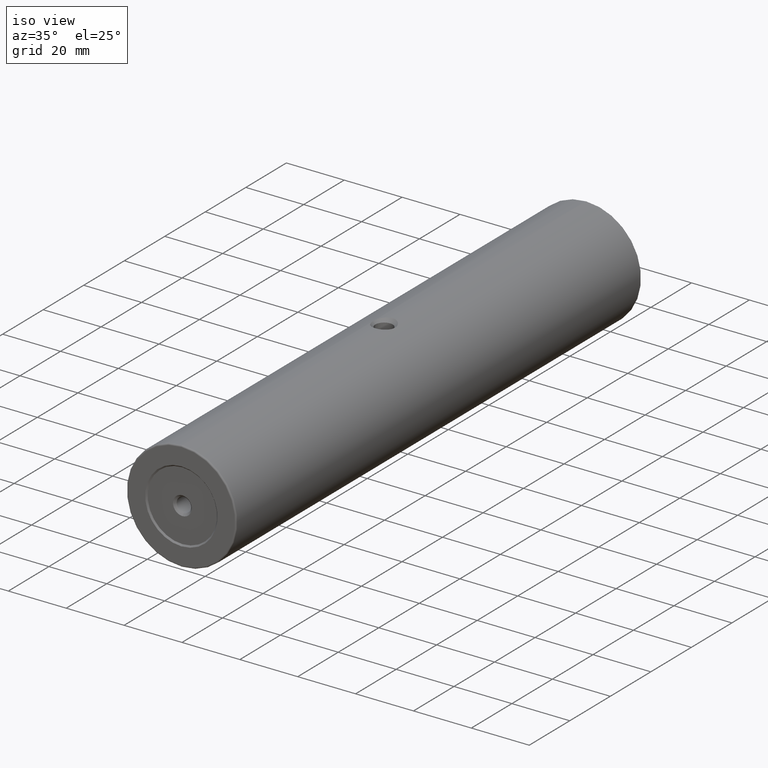
[diagram: clean part render]
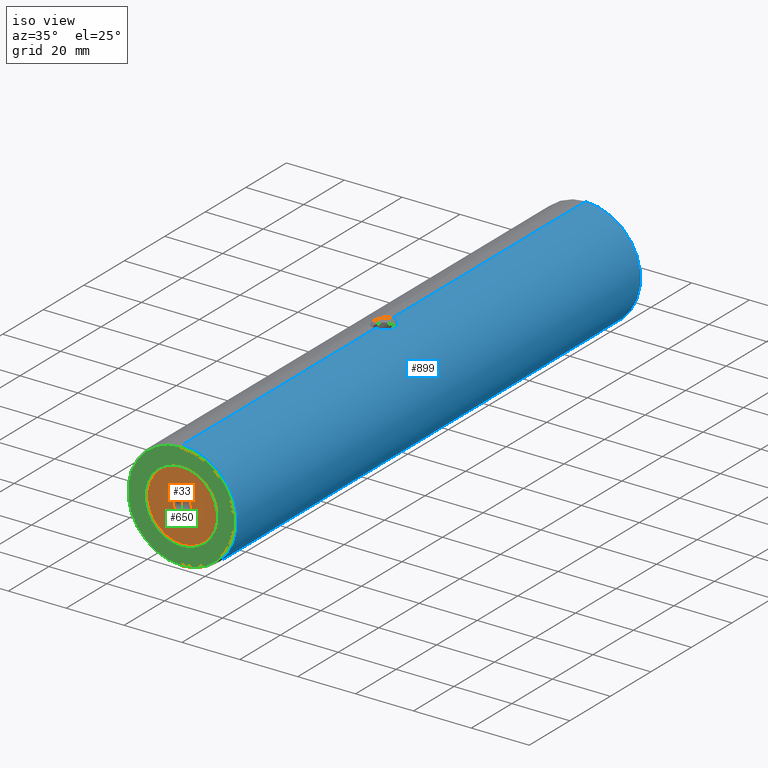
[diagram: same view with three faces highlighted in distinct colors, each labeled with its STEP entity id]
A machine part, iso view with three faces highlighted in distinct colors.
Their STEP definitions:

[orange] entity #33 — the highlighted planar face has unit normal (0, -1, 0).
#3 = CARTESIAN_POINT ( 'NONE',  ( -85.22679983354142053, -103.7613399916742907, 396.7500000000000568 ) ) ;
#4 = DIRECTION ( 'NONE',  ( 0.0000000000000000000, 0.0000000000000000000, -1.000000000000000000 ) ) ;
#9 = EDGE_LOOP ( 'NONE', ( #154, #583 ) ) ;
#29 = PLANE ( 'NONE',  #371 ) ;
#33 = ADVANCED_FACE ( 'NONE', ( #271, #811 ), #29, .T. ) ;
#45 = ORIENTED_EDGE ( 'NONE', *, *, #922, .T. ) ;
#79 = CIRCLE ( 'NONE', #820, 12.00000000000001066 ) ;
#138 = ORIENTED_EDGE ( 'NONE', *, *, #708, .T. ) ;
#154 = ORIENTED_EDGE ( 'NONE', *, *, #734, .F. ) ;
#233 = DIRECTION ( 'NONE',  ( -0.0000000000000000000, 1.000000000000000000, -0.0000000000000000000 ) ) ;
#256 = CARTESIAN_POINT ( 'NONE',  ( -85.22679983354142053, -103.7613399916742907, 400.0000000000000000 ) ) ;
#263 = DIRECTION ( 'NONE',  ( 0.0000000000000000000, 0.0000000000000000000, 1.000000000000000000 ) ) ;
#271 = FACE_BOUND ( 'NONE', #838, .T. ) ;
#299 = AXIS2_PLACEMENT_3D ( 'NONE', #538, #934, #938 ) ;
#354 = EDGE_CURVE ( 'NONE', #849, #872, #79, .T. ) ;
#371 = AXIS2_PLACEMENT_3D ( 'NONE', #821, #502, #263 ) ;
#388 = CARTESIAN_POINT ( 'NONE',  ( -85.22679983354142053, -103.7613399916742907, 403.2500000000000000 ) ) ;
#422 = CIRCLE ( 'NONE', #785, 3.249999999999975131 ) ;
#454 = VERTEX_POINT ( 'NONE', #3 ) ;
#477 = CIRCLE ( 'NONE', #299, 12.00000000000001066 ) ;
#483 = CIRCLE ( 'NONE', #876, 3.249999999999975131 ) ;
#502 = DIRECTION ( 'NONE',  ( 0.0000000000000000000, -1.000000000000000000, 0.0000000000000000000 ) ) ;
#532 = DIRECTION ( 'NONE',  ( -0.0000000000000000000, 1.000000000000000000, -0.0000000000000000000 ) ) ;
#538 = CARTESIAN_POINT ( 'NONE',  ( -85.22679983354142053, -103.7613399916742907, 400.0000000000000000 ) ) ;
#555 = DIRECTION ( 'NONE',  ( 0.0000000000000000000, 0.0000000000000000000, -1.000000000000000000 ) ) ;
#566 = CARTESIAN_POINT ( 'NONE',  ( -85.22679983354142053, -103.7613399916742907, 412.0000000000000568 ) ) ;
#583 = ORIENTED_EDGE ( 'NONE', *, *, #354, .F. ) ;
#587 = DIRECTION ( 'NONE',  ( -0.0000000000000000000, 1.000000000000000000, -0.0000000000000000000 ) ) ;
#617 = CARTESIAN_POINT ( 'NONE',  ( -85.22679983354142053, -103.7613399916742907, 400.0000000000000000 ) ) ;
#686 = CARTESIAN_POINT ( 'NONE',  ( -85.22679983354142053, -103.7613399916742907, 400.0000000000000000 ) ) ;
#704 = VERTEX_POINT ( 'NONE', #388 ) ;
#708 = EDGE_CURVE ( 'NONE', #704, #454, #422, .T. ) ;
#734 = EDGE_CURVE ( 'NONE', #872, #849, #477, .T. ) ;
#785 = AXIS2_PLACEMENT_3D ( 'NONE', #617, #233, #555 ) ;
#808 = CARTESIAN_POINT ( 'NONE',  ( -85.22679983354142053, -103.7613399916742907, 388.0000000000000000 ) ) ;
#811 = FACE_OUTER_BOUND ( 'NONE', #9, .T. ) ;
#820 = AXIS2_PLACEMENT_3D ( 'NONE', #686, #532, #996 ) ;
#821 = CARTESIAN_POINT ( 'NONE',  ( -85.22679983354142053, -103.7613399916742907, 400.0000000000000000 ) ) ;
#838 = EDGE_LOOP ( 'NONE', ( #45, #138 ) ) ;
#849 = VERTEX_POINT ( 'NONE', #808 ) ;
#872 = VERTEX_POINT ( 'NONE', #566 ) ;
#876 = AXIS2_PLACEMENT_3D ( 'NONE', #256, #587, #4 ) ;
#922 = EDGE_CURVE ( 'NONE', #454, #704, #483, .T. ) ;
#934 = DIRECTION ( 'NONE',  ( -0.0000000000000000000, 1.000000000000000000, -0.0000000000000000000 ) ) ;
#938 = DIRECTION ( 'NONE',  ( 0.0000000000000000000, 0.0000000000000000000, -1.000000000000000000 ) ) ;
#996 = DIRECTION ( 'NONE',  ( 0.0000000000000000000, 0.0000000000000000000, -1.000000000000000000 ) ) ;

[blue] entity #899 — the highlighted cylindrical surface (partial cylindrical patch) has radius 19 mm, axis along (-0, -1, -0).
#2 = CARTESIAN_POINT ( 'NONE',  ( -82.83102515499484753, -0.9863390833895698817, 418.8494842750069438 ) ) ;
#20 = VERTEX_POINT ( 'NONE', #590 ) ;
#37 = VERTEX_POINT ( 'NONE', #724 ) ;
#44 = CARTESIAN_POINT ( 'NONE',  ( -81.59279953389886941, -2.964568543362572584, 381.3505402671659681 ) ) ;
#47 = CARTESIAN_POINT ( 'NONE',  ( -82.29671814351611658, -6.957786961682561611, 381.2264976013096884 ) ) ;
#57 = CARTESIAN_POINT ( 'NONE',  ( -84.18986350246656514, -8.312315706571794749, 418.9733988301109093 ) ) ;
#74 = CARTESIAN_POINT ( 'NONE',  ( -82.14497683168238495, -1.778754477084894647, 418.7488661386886406 ) ) ;
#75 = DIRECTION ( 'NONE',  ( -0.0000000000000000000, -1.000000000000000000, -0.0000000000000000000 ) ) ;
#77 = CIRCLE ( 'NONE', #661, 19.00000000000001776 ) ;
#81 = CARTESIAN_POINT ( 'NONE',  ( -81.43639937781144056, -3.732814026306843225, 418.6181352063767918 ) ) ;
#86 = DIRECTION ( 'NONE',  ( 0.0000000000000000000, 1.000000000000000000, 0.0000000000000000000 ) ) ;
#90 = ORIENTED_EDGE ( 'NONE', *, *, #220, .T. ) ;
#91 = ORIENTED_EDGE ( 'NONE', *, *, #767, .T. ) ;
#100 = VECTOR ( 'NONE', #75, 1000.000000000000000 ) ;
#101 = CARTESIAN_POINT ( 'NONE',  ( -85.22679983354142053, 95.73866000832572354, 400.0000000000000000 ) ) ;
#115 = EDGE_CURVE ( 'NONE', #789, #926, #180, .T. ) ;
#121 = CARTESIAN_POINT ( 'NONE',  ( -82.29571650229409840, -1.565921010254241796, 381.2266365370629160 ) ) ;
#124 = CARTESIAN_POINT ( 'NONE',  ( -82.14309753980985818, -6.741247472261910012, 381.2514396459365571 ) ) ;
#125 = ORIENTED_EDGE ( 'NONE', *, *, #433, .F. ) ;
#132 = CARTESIAN_POINT ( 'NONE',  ( -81.41341497436532393, -4.524701080299158740, 381.3866151408239489 ) ) ;
#136 = CARTESIAN_POINT ( 'NONE',  ( -81.88335953815429491, -2.229144387579305775, 381.2960158925316705 ) ) ;
#139 = CARTESIAN_POINT ( 'NONE',  ( -81.43639937781146898, -3.732814026306841892, 381.3818647936232082 ) ) ;
#142 = CARTESIAN_POINT ( 'NONE',  ( -85.22679983354142053, -8.461339991674268646, 419.0000000000000568 ) ) ;
#147 = CARTESIAN_POINT ( 'NONE',  ( -85.22679983354142053, 95.23866000832572354, 381.0000000000000000 ) ) ;
#151 = DIRECTION ( 'NONE',  ( -0.0000000000000000000, -1.000000000000000000, -0.0000000000000000000 ) ) ;
#156 = CARTESIAN_POINT ( 'NONE',  ( -84.69707466841043697, -0.09239770115273915341, 418.9943257409157127 ) ) ;
#157 = CARTESIAN_POINT ( 'NONE',  ( -81.41341497436532393, -4.261339991674279126, 418.6133848591761648 ) ) ;
#168 = B_SPLINE_CURVE_WITH_KNOTS ( 'NONE', 3,
 ( #523, #826, #836, #287, #348, #515, #674, #979, #681, #47, #124, #987, #597, #750, #903, #603, #132, #444 ),
 .UNSPECIFIED., .F., .F.,
 ( 4, 2, 2, 2, 2, 2, 2, 2, 4 ),
 ( 0.003733624680294762854, 0.004520577988407363350, 0.005307531296519963845, 0.006094484604632565208, 0.006881437912745166571, 0.007668391220857769669, 0.008455344528970371032, 0.009242297837082972395, 0.01002925114519557549 ),
 .UNSPECIFIED. ) ;
#180 = LINE ( 'NONE', #570, #637 ) ;
#188 = VERTEX_POINT ( 'NONE', #915 ) ;
#201 = CARTESIAN_POINT ( 'NONE',  ( -83.24199987212081453, -0.6676668308104372063, 381.1028212990075872 ) ) ;
#208 = CARTESIAN_POINT ( 'NONE',  ( -83.46626106639050136, -7.995107640163255702, 418.9197388689088370 ) ) ;
#220 = EDGE_CURVE ( 'NONE', #37, #324, #168, .T. ) ;
#222 = ORIENTED_EDGE ( 'NONE', *, *, #282, .T. ) ;
#223 = CARTESIAN_POINT ( 'NONE',  ( -81.88335953815429491, -2.229144387579318209, 418.7039841074685000 ) ) ;
#228 = CARTESIAN_POINT ( 'NONE',  ( -81.41341497436532393, -3.997586484548957486, 418.6133848591761648 ) ) ;
#237 = CARTESIAN_POINT ( 'NONE',  ( -82.64087668775827922, -1.167056617506570415, 418.8240119711596208 ) ) ;
#238 = CARTESIAN_POINT ( 'NONE',  ( -81.77082803723338600, -6.051458313143361245, 418.6832669197586370 ) ) ;
#241 = CARTESIAN_POINT ( 'NONE',  ( -81.52508446630257311, -5.300719478809653218, 418.6359698950037682 ) ) ;
#242 = CIRCLE ( 'NONE', #694, 19.00000000000001776 ) ;
#248 = CARTESIAN_POINT ( 'NONE',  ( -85.22679983354142053, -0.06133999167429880772, 419.0000000000000568 ) ) ;
#254 = FACE_OUTER_BOUND ( 'NONE', #772, .T. ) ;
#260 = VECTOR ( 'NONE', #830, 1000.000000000000000 ) ;
#274 = VERTEX_POINT ( 'NONE', #684 ) ;
#282 = EDGE_CURVE ( 'NONE', #20, #602, #527, .T. ) ;
#287 = CARTESIAN_POINT ( 'NONE',  ( -84.18986350246656514, -8.312315706571794749, 381.0266011698889201 ) ) ;
#291 = CARTESIAN_POINT ( 'NONE',  ( -85.22679983354142053, -8.461339991674268646, 419.0000000000000568 ) ) ;
#300 = CARTESIAN_POINT ( 'NONE',  ( -84.69707466841040855, -0.09239770115273913953, 381.0056742590844578 ) ) ;
#304 = CARTESIAN_POINT ( 'NONE',  ( -85.22679983354142053, 95.23866000832572354, 400.0000000000000000 ) ) ;
#305 = CARTESIAN_POINT ( 'NONE',  ( -82.83102515499486174, -0.9863390833895689935, 381.1505157249931699 ) ) ;
#315 = CARTESIAN_POINT ( 'NONE',  ( -83.46511704992533964, -0.5280370949836369343, 418.9196591600729107 ) ) ;
#319 = VERTEX_POINT ( 'NONE', #848 ) ;
#324 = VERTEX_POINT ( 'NONE', #534 ) ;
#330 = ORIENTED_EDGE ( 'NONE', *, *, #845, .T. ) ;
#336 = EDGE_CURVE ( 'NONE', #324, #926, #457, .T. ) ;
#348 = CARTESIAN_POINT ( 'NONE',  ( -83.93808702169893365, -8.222923423920713404, 381.0422776972831116 ) ) ;
#352 = CARTESIAN_POINT ( 'NONE',  ( -84.96393248785444996, -0.06133999167429707300, 381.0000000000000000 ) ) ;
#360 = CARTESIAN_POINT ( 'NONE',  ( -84.18753268678749180, -0.2111030241652349648, 381.0267308325566091 ) ) ;
#364 = CARTESIAN_POINT ( 'NONE',  ( -82.82757549099136440, -7.533607839044134558, 418.8490779973516851 ) ) ;
#369 = CARTESIAN_POINT ( 'NONE',  ( -83.93808702169893365, -8.222923423920713404, 418.9577223027167747 ) ) ;
#390 = CARTESIAN_POINT ( 'NONE',  ( -85.22679983354142053, -0.06133999167429880772, 381.0000000000000000 ) ) ;
#394 = CARTESIAN_POINT ( 'NONE',  ( -85.22679983354142053, 95.73866000832572354, 381.0000000000000000 ) ) ;
#411 = CYLINDRICAL_SURFACE ( 'NONE', #744, 19.00000000000001776 ) ;
#431 = CARTESIAN_POINT ( 'NONE',  ( -82.14497683168241338, -1.778754477084883101, 381.2511338613114162 ) ) ;
#433 = EDGE_CURVE ( 'NONE', #727, #188, #666, .T. ) ;
#441 = CARTESIAN_POINT ( 'NONE',  ( -81.41341497436532393, -4.261339991674277350, 381.3866151408238920 ) ) ;
#444 = CARTESIAN_POINT ( 'NONE',  ( -81.41341497436532393, -4.261339991674277350, 381.3866151408238920 ) ) ;
#457 = B_SPLINE_CURVE_WITH_KNOTS ( 'NONE', 3,
 ( #441, #824, #139, #925, #44, #990, #136, #431, #121, #528, #305, #201, #929, #746, #360, #300, #352, #678 ),
 .UNSPECIFIED., .F., .F.,
 ( 4, 2, 2, 2, 2, 2, 2, 2, 4 ),
 ( 0.01002925114519557549, 0.01081737704504791807, 0.01160550294490026065, 0.01239362884475260496, 0.01318175474460494753, 0.01396988064445729011, 0.01475800654430963268, 0.01554613244416197526, 0.01633425834401431784 ),
 .UNSPECIFIED. ) ;
#460 = ORIENTED_EDGE ( 'NONE', *, *, #469, .F. ) ;
#469 = EDGE_CURVE ( 'NONE', #37, #319, #702, .T. ) ;
#471 = CARTESIAN_POINT ( 'NONE',  ( -81.59279953389886941, -2.964568543362574360, 418.6494597328340888 ) ) ;
#475 = CARTESIAN_POINT ( 'NONE',  ( -83.24199987212080032, -0.6676668308104377614, 418.8971787009924697 ) ) ;
#480 = CARTESIAN_POINT ( 'NONE',  ( -85.22679983354142053, 95.73866000832572354, 419.0000000000000568 ) ) ;
#497 = LINE ( 'NONE', #480, #794 ) ;
#515 = CARTESIAN_POINT ( 'NONE',  ( -83.46626106639050136, -7.995107640163255702, 381.0802611310913903 ) ) ;
#523 = CARTESIAN_POINT ( 'NONE',  ( -85.22679983354142053, -8.461339991674268646, 381.0000000000000000 ) ) ;
#527 = LINE ( 'NONE', #900, #260 ) ;
#528 = CARTESIAN_POINT ( 'NONE',  ( -82.64087668775829343, -1.167056617506569971, 381.1759880288403792 ) ) ;
#534 = CARTESIAN_POINT ( 'NONE',  ( -81.41341497436532393, -4.261339991674277350, 381.3866151408238920 ) ) ;
#556 = CARTESIAN_POINT ( 'NONE',  ( -81.88059113652985843, -6.288202399889226690, 418.7034922552546163 ) ) ;
#561 = CARTESIAN_POINT ( 'NONE',  ( -81.59285872774556481, -5.558021363143371474, 418.6494685149854149 ) ) ;
#570 = CARTESIAN_POINT ( 'NONE',  ( -85.22679983354142053, 95.73866000832572354, 381.0000000000000000 ) ) ;
#590 = CARTESIAN_POINT ( 'NONE',  ( -85.22679983354142053, 95.23866000832572354, 419.0000000000000568 ) ) ;
#597 = CARTESIAN_POINT ( 'NONE',  ( -81.77082803723338600, -6.051458313143355028, 381.3167330802414767 ) ) ;
#602 = VERTEX_POINT ( 'NONE', #248 ) ;
#603 = CARTESIAN_POINT ( 'NONE',  ( -81.43586367851925445, -4.785232307264686291, 381.3819744963091694 ) ) ;
#624 = CARTESIAN_POINT ( 'NONE',  ( -84.96393248785446417, -0.06133999167429705912, 419.0000000000001705 ) ) ;
#627 = ORIENTED_EDGE ( 'NONE', *, *, #939, .T. ) ;
#631 = CARTESIAN_POINT ( 'NONE',  ( -81.77187972696634688, -2.468561370532886379, 418.6834641745472823 ) ) ;
#632 = CARTESIAN_POINT ( 'NONE',  ( -82.14309753980985818, -6.741247472261910012, 418.7485603540634429 ) ) ;
#637 = VECTOR ( 'NONE', #878, 1000.000000000000000 ) ;
#661 = AXIS2_PLACEMENT_3D ( 'NONE', #304, #705, #859 ) ;
#666 = B_SPLINE_CURVE_WITH_KNOTS ( 'NONE', 3,
 ( #291, #1005, #914, #57, #369, #208, #692, #364, #689, #1000, #632, #556, #238, #561, #241, #951, #863, #157 ),
 .UNSPECIFIED., .F., .F.,
 ( 4, 2, 2, 2, 2, 2, 2, 2, 4 ),
 ( 0.003733624680294762854, 0.004520577988407363350, 0.005307531296519963845, 0.006094484604632564341, 0.006881437912745166571, 0.007668391220857767934, 0.008455344528970369297, 0.009242297837082972395, 0.01002925114519557376 ),
 .UNSPECIFIED. ) ;
#674 = CARTESIAN_POINT ( 'NONE',  ( -83.24438980785724596, -7.856924346119599889, 381.1025380199827737 ) ) ;
#678 = CARTESIAN_POINT ( 'NONE',  ( -85.22679983354142053, -0.06133999167429880772, 381.0000000000000000 ) ) ;
#681 = CARTESIAN_POINT ( 'NONE',  ( -82.63814515825626472, -7.352595677616392322, 381.1763808475635642 ) ) ;
#684 = CARTESIAN_POINT ( 'NONE',  ( -85.22679983354142053, -103.7613399916742907, 419.0000000000000568 ) ) ;
#689 = CARTESIAN_POINT ( 'NONE',  ( -82.63814515825626472, -7.352595677616392322, 418.8236191524364926 ) ) ;
#692 = CARTESIAN_POINT ( 'NONE',  ( -83.24438980785724596, -7.856924346119599889, 418.8974619800173400 ) ) ;
#694 = AXIS2_PLACEMENT_3D ( 'NONE', #790, #86, #947 ) ;
#702 = LINE ( 'NONE', #394, #100 ) ;
#705 = DIRECTION ( 'NONE',  ( -0.0000000000000000000, -1.000000000000000000, -0.0000000000000000000 ) ) ;
#713 = ORIENTED_EDGE ( 'NONE', *, *, #723, .F. ) ;
#723 = EDGE_CURVE ( 'NONE', #188, #602, #870, .T. ) ;
#724 = CARTESIAN_POINT ( 'NONE',  ( -85.22679983354142053, -8.461339991674268646, 381.0000000000000000 ) ) ;
#727 = VERTEX_POINT ( 'NONE', #142 ) ;
#744 = AXIS2_PLACEMENT_3D ( 'NONE', #101, #151, #864 ) ;
#746 = CARTESIAN_POINT ( 'NONE',  ( -83.94119362236200743, -0.2983445582111096117, 381.0420400455853382 ) ) ;
#750 = CARTESIAN_POINT ( 'NONE',  ( -81.59285872774556481, -5.558021363143366145, 381.3505314850146988 ) ) ;
#767 = EDGE_CURVE ( 'NONE', #789, #20, #77, .T. ) ;
#772 = EDGE_LOOP ( 'NONE', ( #91, #222, #713, #125, #330, #627, #460, #90, #842, #901 ) ) ;
#776 = CARTESIAN_POINT ( 'NONE',  ( -83.94119362236200743, -0.2983445582111095007, 418.9579599544148323 ) ) ;
#780 = CARTESIAN_POINT ( 'NONE',  ( -81.52612773688036896, -3.217498801581725854, 418.6361777253471814 ) ) ;
#789 = VERTEX_POINT ( 'NONE', #147 ) ;
#790 = CARTESIAN_POINT ( 'NONE',  ( -85.22679983354142053, -103.7613399916742907, 400.0000000000000000 ) ) ;
#791 = DIRECTION ( 'NONE',  ( -0.0000000000000000000, -1.000000000000000000, -0.0000000000000000000 ) ) ;
#794 = VECTOR ( 'NONE', #791, 1000.000000000000000 ) ;
#824 = CARTESIAN_POINT ( 'NONE',  ( -81.41341497436533814, -3.997586484548954822, 381.3866151408237783 ) ) ;
#826 = CARTESIAN_POINT ( 'NONE',  ( -84.96243902164792416, -8.461339991674275751, 381.0000000000000568 ) ) ;
#830 = DIRECTION ( 'NONE',  ( -0.0000000000000000000, -1.000000000000000000, -0.0000000000000000000 ) ) ;
#836 = CARTESIAN_POINT ( 'NONE',  ( -84.69972560880194123, -8.430702186240790041, 381.0055983805024198 ) ) ;
#842 = ORIENTED_EDGE ( 'NONE', *, *, #336, .T. ) ;
#845 = EDGE_CURVE ( 'NONE', #727, #274, #497, .T. ) ;
#848 = CARTESIAN_POINT ( 'NONE',  ( -85.22679983354142053, -103.7613399916742907, 381.0000000000000000 ) ) ;
#856 = CARTESIAN_POINT ( 'NONE',  ( -85.22679983354142053, -0.06133999167429880772, 419.0000000000000568 ) ) ;
#859 = DIRECTION ( 'NONE',  ( 0.0000000000000000000, 0.0000000000000000000, 1.000000000000000000 ) ) ;
#862 = CARTESIAN_POINT ( 'NONE',  ( -84.18753268678747759, -0.2111030241652349926, 418.9732691674435046 ) ) ;
#863 = CARTESIAN_POINT ( 'NONE',  ( -81.41341497436532393, -4.524701080299160516, 418.6133848591761648 ) ) ;
#864 = DIRECTION ( 'NONE',  ( 0.0000000000000000000, 0.0000000000000000000, -1.000000000000000000 ) ) ;
#870 = B_SPLINE_CURVE_WITH_KNOTS ( 'NONE', 3,
 ( #928, #228, #81, #780, #471, #631, #223, #74, #942, #237, #2, #475, #315, #776, #862, #156, #624, #856 ),
 .UNSPECIFIED., .F., .F.,
 ( 4, 2, 2, 2, 2, 2, 2, 2, 4 ),
 ( 0.01002925114519557376, 0.01081737704504791807, 0.01160550294490026065, 0.01239362884475260496, 0.01318175474460494753, 0.01396988064445729011, 0.01475800654430963268, 0.01554613244416197526, 0.01633425834401431784 ),
 .UNSPECIFIED. ) ;
#878 = DIRECTION ( 'NONE',  ( -0.0000000000000000000, -1.000000000000000000, -0.0000000000000000000 ) ) ;
#899 = ADVANCED_FACE ( 'NONE', ( #254 ), #411, .T. ) ;
#900 = CARTESIAN_POINT ( 'NONE',  ( -85.22679983354142053, 95.73866000832572354, 419.0000000000000568 ) ) ;
#901 = ORIENTED_EDGE ( 'NONE', *, *, #115, .F. ) ;
#903 = CARTESIAN_POINT ( 'NONE',  ( -81.52508446630257311, -5.300719478809650553, 381.3640301049963455 ) ) ;
#914 = CARTESIAN_POINT ( 'NONE',  ( -84.69972560880194123, -8.430702186240790041, 418.9944016194976939 ) ) ;
#915 = CARTESIAN_POINT ( 'NONE',  ( -81.41341497436532393, -4.261339991674279126, 418.6133848591761648 ) ) ;
#925 = CARTESIAN_POINT ( 'NONE',  ( -81.52612773688034054, -3.217498801581724077, 381.3638222746528754 ) ) ;
#926 = VERTEX_POINT ( 'NONE', #390 ) ;
#928 = CARTESIAN_POINT ( 'NONE',  ( -81.41341497436532393, -4.261339991674279126, 418.6133848591761648 ) ) ;
#929 = CARTESIAN_POINT ( 'NONE',  ( -83.46511704992532543, -0.5280370949836370453, 381.0803408399271461 ) ) ;
#939 = EDGE_CURVE ( 'NONE', #274, #319, #242, .T. ) ;
#942 = CARTESIAN_POINT ( 'NONE',  ( -82.29571650229409840, -1.565921010254242685, 418.7733634629371409 ) ) ;
#947 = DIRECTION ( 'NONE',  ( 0.0000000000000000000, 0.0000000000000000000, 1.000000000000000000 ) ) ;
#951 = CARTESIAN_POINT ( 'NONE',  ( -81.43586367851925445, -4.785232307264688068, 418.6180255036908306 ) ) ;
#979 = CARTESIAN_POINT ( 'NONE',  ( -82.82757549099136440, -7.533607839044134558, 381.1509220026484286 ) ) ;
#987 = CARTESIAN_POINT ( 'NONE',  ( -81.88059113652985843, -6.288202399889226690, 381.2965077447454973 ) ) ;
#990 = CARTESIAN_POINT ( 'NONE',  ( -81.77187972696631846, -2.468561370532884602, 381.3165358254529451 ) ) ;
#1000 = CARTESIAN_POINT ( 'NONE',  ( -82.29671814351611658, -6.957786961682561611, 418.7735023986901979 ) ) ;
#1005 = CARTESIAN_POINT ( 'NONE',  ( -84.96243902164792416, -8.461339991674275751, 419.0000000000001137 ) ) ;

[green] entity #650 — the highlighted planar face has unit normal (0, 1, 0).
#13 = AXIS2_PLACEMENT_3D ( 'NONE', #491, #893, #814 ) ;
#15 = ORIENTED_EDGE ( 'NONE', *, *, #700, .T. ) ;
#19 = DIRECTION ( 'NONE',  ( 0.0000000000000000000, -0.0000000000000000000, 1.000000000000000000 ) ) ;
#58 = ORIENTED_EDGE ( 'NONE', *, *, #143, .T. ) ;
#70 = DIRECTION ( 'NONE',  ( -0.0000000000000000000, 1.000000000000000000, -0.0000000000000000000 ) ) ;
#96 = CIRCLE ( 'NONE', #13, 18.50000000000001776 ) ;
#102 = DIRECTION ( 'NONE',  ( 0.0000000000000000000, 0.0000000000000000000, 1.000000000000000000 ) ) ;
#109 = DIRECTION ( 'NONE',  ( 0.0000000000000000000, 1.000000000000000000, 0.0000000000000000000 ) ) ;
#143 = EDGE_CURVE ( 'NONE', #407, #152, #96, .T. ) ;
#152 = VERTEX_POINT ( 'NONE', #802 ) ;
#158 = CIRCLE ( 'NONE', #738, 18.50000000000001776 ) ;
#160 = AXIS2_PLACEMENT_3D ( 'NONE', #439, #754, #290 ) ;
#187 = CARTESIAN_POINT ( 'NONE',  ( -85.22679983354142053, -104.2613399916742907, 400.0000000000000000 ) ) ;
#290 = DIRECTION ( 'NONE',  ( 0.0000000000000000000, 0.0000000000000000000, 1.000000000000000000 ) ) ;
#318 = EDGE_CURVE ( 'NONE', #912, #884, #438, .T. ) ;
#329 = CARTESIAN_POINT ( 'NONE',  ( -85.22679983354142053, -104.2613399916742907, 387.5000000000000000 ) ) ;
#407 = VERTEX_POINT ( 'NONE', #918 ) ;
#438 = CIRCLE ( 'NONE', #160, 12.50000000000001066 ) ;
#439 = CARTESIAN_POINT ( 'NONE',  ( -85.22679983354142053, -104.2613399916742907, 400.0000000000000000 ) ) ;
#491 = CARTESIAN_POINT ( 'NONE',  ( -85.22679983354142053, -104.2613399916742907, 400.0000000000000000 ) ) ;
#501 = FACE_BOUND ( 'NONE', #536, .T. ) ;
#511 = EDGE_CURVE ( 'NONE', #884, #912, #680, .T. ) ;
#536 = EDGE_LOOP ( 'NONE', ( #711, #660 ) ) ;
#582 = FACE_OUTER_BOUND ( 'NONE', #896, .T. ) ;
#650 = ADVANCED_FACE ( 'NONE', ( #501, #582 ), #813, .F. ) ;
#660 = ORIENTED_EDGE ( 'NONE', *, *, #511, .T. ) ;
#680 = CIRCLE ( 'NONE', #805, 12.50000000000001066 ) ;
#700 = EDGE_CURVE ( 'NONE', #152, #407, #158, .T. ) ;
#706 = CARTESIAN_POINT ( 'NONE',  ( -85.22679983354142053, -104.2613399916742907, 400.0000000000000000 ) ) ;
#711 = ORIENTED_EDGE ( 'NONE', *, *, #318, .T. ) ;
#731 = CARTESIAN_POINT ( 'NONE',  ( -85.22679983354142053, -104.2613399916742907, 412.5000000000000568 ) ) ;
#738 = AXIS2_PLACEMENT_3D ( 'NONE', #955, #804, #102 ) ;
#754 = DIRECTION ( 'NONE',  ( -0.0000000000000000000, 1.000000000000000000, -0.0000000000000000000 ) ) ;
#802 = CARTESIAN_POINT ( 'NONE',  ( -85.22679983354142053, -104.2613399916742907, 381.5000000000000000 ) ) ;
#804 = DIRECTION ( 'NONE',  ( -0.0000000000000000000, -1.000000000000000000, -0.0000000000000000000 ) ) ;
#805 = AXIS2_PLACEMENT_3D ( 'NONE', #706, #70, #851 ) ;
#813 = PLANE ( 'NONE',  #921 ) ;
#814 = DIRECTION ( 'NONE',  ( 0.0000000000000000000, 0.0000000000000000000, 1.000000000000000000 ) ) ;
#851 = DIRECTION ( 'NONE',  ( 0.0000000000000000000, 0.0000000000000000000, 1.000000000000000000 ) ) ;
#884 = VERTEX_POINT ( 'NONE', #329 ) ;
#893 = DIRECTION ( 'NONE',  ( -0.0000000000000000000, -1.000000000000000000, -0.0000000000000000000 ) ) ;
#896 = EDGE_LOOP ( 'NONE', ( #58, #15 ) ) ;
#912 = VERTEX_POINT ( 'NONE', #731 ) ;
#918 = CARTESIAN_POINT ( 'NONE',  ( -85.22679983354142053, -104.2613399916742907, 418.5000000000000568 ) ) ;
#921 = AXIS2_PLACEMENT_3D ( 'NONE', #187, #109, #19 ) ;
#955 = CARTESIAN_POINT ( 'NONE',  ( -85.22679983354142053, -104.2613399916742907, 400.0000000000000000 ) ) ;